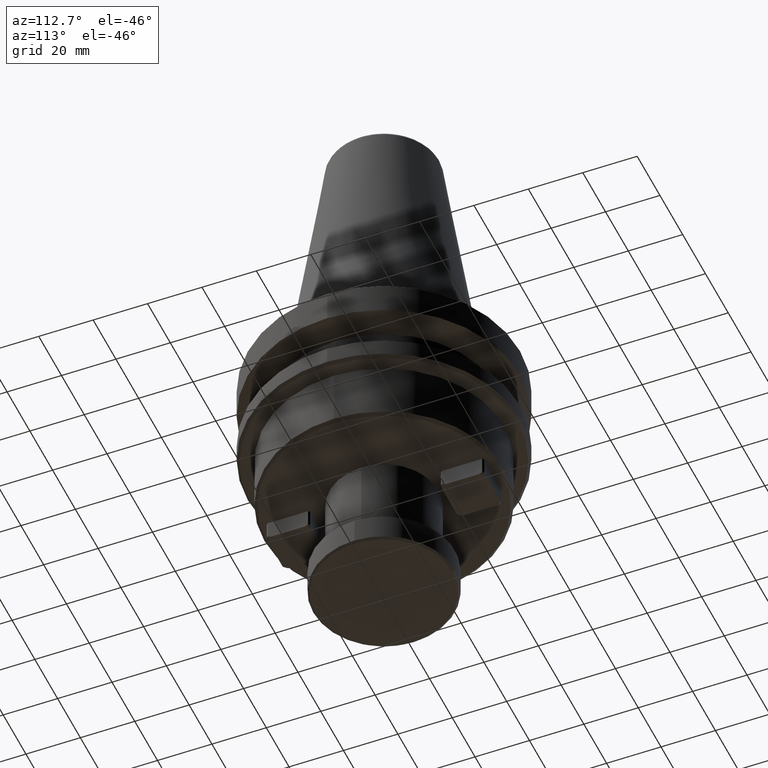
[diagram: clean part render]
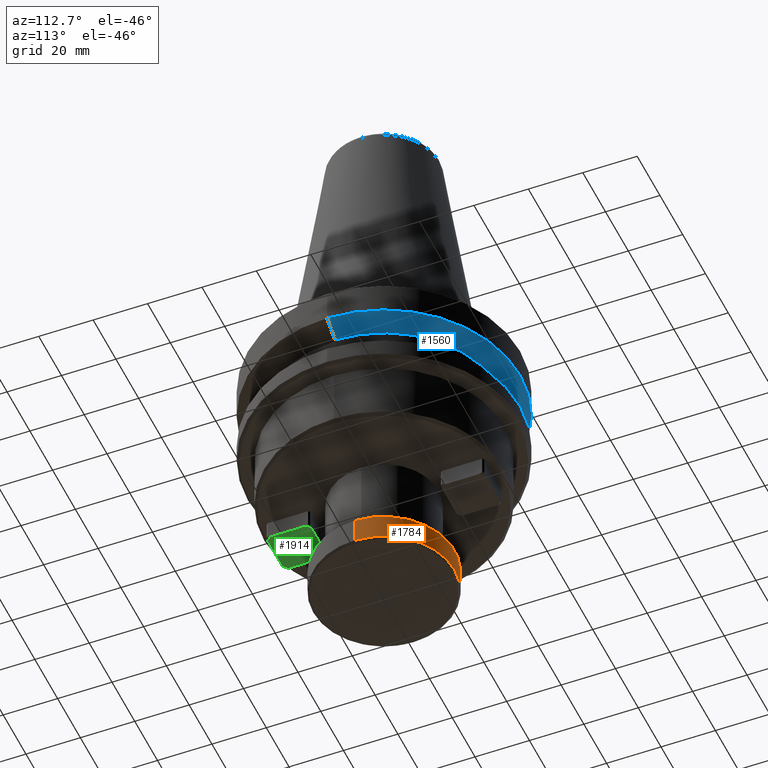
[diagram: same view with three faces highlighted in distinct colors, each labeled with its STEP entity id]
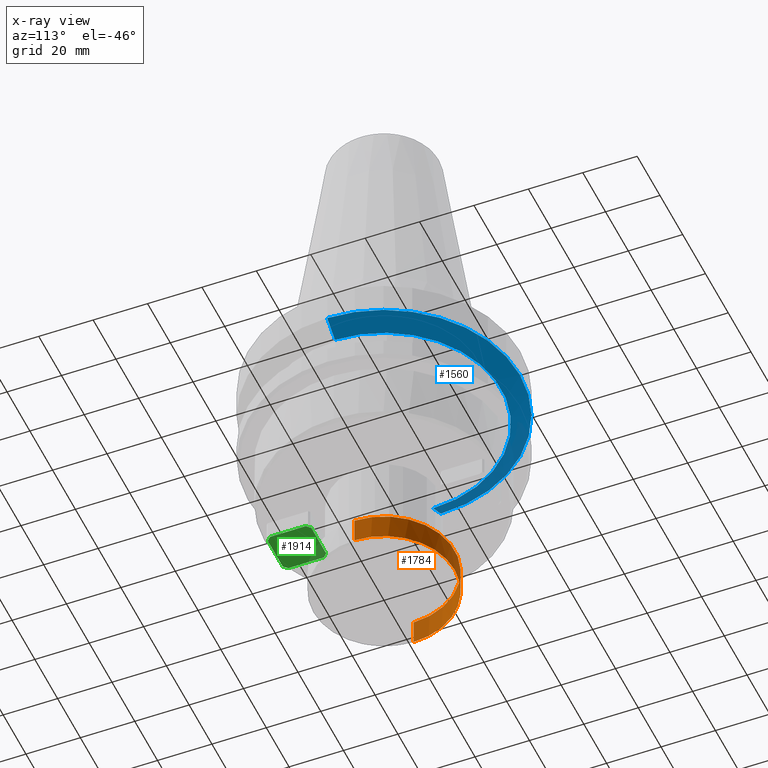
[diagram: x-ray of the same camera — body ghosted, the three highlighted faces saturated]
A machine part, auxiliary view with three faces highlighted in distinct colors.
The next image is the same camera in x-ray (body ghosted, the three faces saturated) — at least one of them is partly hidden behind the body in this view.
Their STEP definitions:

[orange] entity #1784 — the highlighted cylindrical surface (partial cylindrical patch) has radius 26 mm, axis along (0, 0, 1).
#180 = DIRECTION ( 'NONE',  ( 0.0000000000000000000, 0.0000000000000000000, 1.000000000000000000 ) ) ;
#185 = CARTESIAN_POINT ( 'NONE',  ( -26.00000000000000400, 3.184081677783118600E-015, 0.0000000000000000000 ) ) ;
#200 = AXIS2_PLACEMENT_3D ( 'NONE', #430, #384, #295 ) ;
#203 = VECTOR ( 'NONE', #1358, 1000.000000000000000 ) ;
#208 = VERTEX_POINT ( 'NONE', #1692 ) ;
#292 = EDGE_CURVE ( 'NONE', #2145, #208, #477, .T. ) ;
#295 = DIRECTION ( 'NONE',  ( 1.000000000000000000, 0.0000000000000000000, 0.0000000000000000000 ) ) ;
#325 = AXIS2_PLACEMENT_3D ( 'NONE', #1001, #1000, #999 ) ;
#384 = DIRECTION ( 'NONE',  ( 0.0000000000000000000, 0.0000000000000000000, 1.000000000000000000 ) ) ;
#430 = CARTESIAN_POINT ( 'NONE',  ( 0.0000000000000000000, 0.0000000000000000000, -101.2999999999999800 ) ) ;
#477 = CIRCLE ( 'NONE', #325, 26.00000000000000400 ) ;
#539 = CARTESIAN_POINT ( 'NONE',  ( 26.00000000000000400, 0.0000000000000000000, -101.2999999999999800 ) ) ;
#803 = VECTOR ( 'NONE', #180, 1000.000000000000000 ) ;
#888 = ORIENTED_EDGE ( 'NONE', *, *, #2597, .T. ) ;
#928 = ORIENTED_EDGE ( 'NONE', *, *, #2322, .F. ) ;
#951 = ORIENTED_EDGE ( 'NONE', *, *, #1843, .F. ) ;
#954 = ORIENTED_EDGE ( 'NONE', *, *, #1166, .T. ) ;
#999 = DIRECTION ( 'NONE',  ( 1.000000000000000000, 0.0000000000000000000, 0.0000000000000000000 ) ) ;
#1000 = DIRECTION ( 'NONE',  ( 0.0000000000000000000, 0.0000000000000000000, 1.000000000000000000 ) ) ;
#1001 = CARTESIAN_POINT ( 'NONE',  ( 0.0000000000000000000, 0.0000000000000000000, -101.2999999999999800 ) ) ;
#1004 = ORIENTED_EDGE ( 'NONE', *, *, #292, .T. ) ;
#1059 = CARTESIAN_POINT ( 'NONE',  ( 26.00000000000000400, 0.0000000000000000000, -91.70000000000000300 ) ) ;
#1082 = CARTESIAN_POINT ( 'NONE',  ( -26.00000000000000400, 3.184081677783118600E-015, -91.70000000000000300 ) ) ;
#1166 = EDGE_CURVE ( 'NONE', #208, #2550, #2664, .T. ) ;
#1268 = AXIS2_PLACEMENT_3D ( 'NONE', #2193, #1828, #1824 ) ;
#1311 = CYLINDRICAL_SURFACE ( 'NONE', #2721, 26.00000000000000400 ) ;
#1347 = CARTESIAN_POINT ( 'NONE',  ( 26.00000000000000400, 0.0000000000000000000, 0.0000000000000000000 ) ) ;
#1358 = DIRECTION ( 'NONE',  ( 0.0000000000000000000, 0.0000000000000000000, 1.000000000000000000 ) ) ;
#1440 = CIRCLE ( 'NONE', #200, 26.00000000000000400 ) ;
#1623 = CARTESIAN_POINT ( 'NONE',  ( 3.184081677783118200E-015, 26.00000000000000000, -101.2999999999999800 ) ) ;
#1692 = CARTESIAN_POINT ( 'NONE',  ( -26.00000000000000400, 3.184081677783118600E-015, -101.2999999999999800 ) ) ;
#1784 = ADVANCED_FACE ( 'NONE', ( #2086 ), #1311, .T. ) ;
#1824 = DIRECTION ( 'NONE',  ( -1.000000000000000000, 0.0000000000000000000, 0.0000000000000000000 ) ) ;
#1828 = DIRECTION ( 'NONE',  ( -0.0000000000000000000, -0.0000000000000000000, 1.000000000000000000 ) ) ;
#1839 = CIRCLE ( 'NONE', #1268, 26.00000000000000400 ) ;
#1843 = EDGE_CURVE ( 'NONE', #2579, #2550, #1839, .T. ) ;
#2086 = FACE_OUTER_BOUND ( 'NONE', #2708, .T. ) ;
#2145 = VERTEX_POINT ( 'NONE', #1623 ) ;
#2193 = CARTESIAN_POINT ( 'NONE',  ( 0.0000000000000000000, 0.0000000000000000000, -91.70000000000000300 ) ) ;
#2322 = EDGE_CURVE ( 'NONE', #2603, #2579, #2509, .T. ) ;
#2359 = CARTESIAN_POINT ( 'NONE',  ( 0.0000000000000000000, 0.0000000000000000000, 0.0000000000000000000 ) ) ;
#2377 = DIRECTION ( 'NONE',  ( 0.0000000000000000000, 0.0000000000000000000, 1.000000000000000000 ) ) ;
#2509 = LINE ( 'NONE', #1347, #203 ) ;
#2550 = VERTEX_POINT ( 'NONE', #1082 ) ;
#2579 = VERTEX_POINT ( 'NONE', #1059 ) ;
#2597 = EDGE_CURVE ( 'NONE', #2603, #2145, #1440, .T. ) ;
#2603 = VERTEX_POINT ( 'NONE', #539 ) ;
#2664 = LINE ( 'NONE', #185, #803 ) ;
#2677 = DIRECTION ( 'NONE',  ( 1.000000000000000000, 0.0000000000000000000, 0.0000000000000000000 ) ) ;
#2708 = EDGE_LOOP ( 'NONE', ( #1004, #954, #951, #928, #888 ) ) ;
#2721 = AXIS2_PLACEMENT_3D ( 'NONE', #2359, #2377, #2677 ) ;

[blue] entity #1560 — the highlighted conical surface has half-angle 60 deg.
#42 = ORIENTED_EDGE ( 'NONE', *, *, #1335, .F. ) ;
#45 = DIRECTION ( 'NONE',  ( 1.000000000000000000, 0.0000000000000000000, 0.0000000000000000000 ) ) ;
#47 = DIRECTION ( 'NONE',  ( 0.0000000000000000000, 0.0000000000000000000, 1.000000000000000000 ) ) ;
#51 = CARTESIAN_POINT ( 'NONE',  ( 0.0000000000000000000, 0.0000000000000000000, -15.70022000322675400 ) ) ;
#95 = VECTOR ( 'NONE', #300, 1000.000000000000000 ) ;
#300 = DIRECTION ( 'NONE',  ( -0.8660254037844388200, 1.060575238724907200E-016, 0.4999999999999997200 ) ) ;
#310 = LINE ( 'NONE', #1080, #2131 ) ;
#316 = CARTESIAN_POINT ( 'NONE',  ( -50.00000000000000700, 6.123233995736766900E-015, -15.70022000322675000 ) ) ;
#457 = AXIS2_PLACEMENT_3D ( 'NONE', #51, #47, #45 ) ;
#540 = CARTESIAN_POINT ( 'NONE',  ( 0.0000000000000000000, 0.0000000000000000000, -15.70022000322675000 ) ) ;
#649 = VERTEX_POINT ( 'NONE', #712 ) ;
#712 = CARTESIAN_POINT ( 'NONE',  ( -43.07217782649103600, 5.699027233244276000E-015, -19.70000000000001000 ) ) ;
#969 = CIRCLE ( 'NONE', #457, 50.00000000000000000 ) ;
#989 = EDGE_CURVE ( 'NONE', #649, #1902, #1287, .T. ) ;
#1044 = DIRECTION ( 'NONE',  ( 0.8660254037844388200, 0.0000000000000000000, 0.4999999999999997200 ) ) ;
#1080 = CARTESIAN_POINT ( 'NONE',  ( 50.00000000000000700, 0.0000000000000000000, -15.70022000322675000 ) ) ;
#1176 = EDGE_LOOP ( 'NONE', ( #1552, #1834, #42, #1755 ) ) ;
#1187 = AXIS2_PLACEMENT_3D ( 'NONE', #540, #2057, #2652 ) ;
#1203 = CARTESIAN_POINT ( 'NONE',  ( 43.07217782649103600, 0.0000000000000000000, -19.70000000000001000 ) ) ;
#1287 = LINE ( 'NONE', #316, #95 ) ;
#1295 = DIRECTION ( 'NONE',  ( 0.0000000000000000000, -0.0000000000000000000, 1.000000000000000000 ) ) ;
#1335 = EDGE_CURVE ( 'NONE', #1669, #1902, #969, .T. ) ;
#1552 = ORIENTED_EDGE ( 'NONE', *, *, #2669, .T. ) ;
#1560 = ADVANCED_FACE ( 'NONE', ( #2717 ), #2080, .T. ) ;
#1669 = VERTEX_POINT ( 'NONE', #2519 ) ;
#1705 = CARTESIAN_POINT ( 'NONE',  ( 0.0000000000000000000, 0.0000000000000000000, -19.70000000000001000 ) ) ;
#1755 = ORIENTED_EDGE ( 'NONE', *, *, #2560, .F. ) ;
#1834 = ORIENTED_EDGE ( 'NONE', *, *, #989, .T. ) ;
#1902 = VERTEX_POINT ( 'NONE', #1983 ) ;
#1983 = CARTESIAN_POINT ( 'NONE',  ( -50.00000000000000000, 6.123233995736766100E-015, -15.70022000322675400 ) ) ;
#2057 = DIRECTION ( 'NONE',  ( 0.0000000000000000000, -0.0000000000000000000, 1.000000000000000000 ) ) ;
#2080 = CONICAL_SURFACE ( 'NONE', #1187, 50.00000000000000700, 1.047197551196598100 ) ;
#2131 = VECTOR ( 'NONE', #1044, 1000.000000000000000 ) ;
#2304 = CIRCLE ( 'NONE', #2657, 43.07217782649103600 ) ;
#2382 = VERTEX_POINT ( 'NONE', #1203 ) ;
#2454 = DIRECTION ( 'NONE',  ( 1.000000000000000000, 0.0000000000000000000, 0.0000000000000000000 ) ) ;
#2519 = CARTESIAN_POINT ( 'NONE',  ( 50.00000000000000000, 0.0000000000000000000, -15.70022000322675400 ) ) ;
#2560 = EDGE_CURVE ( 'NONE', #2382, #1669, #310, .T. ) ;
#2652 = DIRECTION ( 'NONE',  ( 1.000000000000000000, 0.0000000000000000000, 0.0000000000000000000 ) ) ;
#2657 = AXIS2_PLACEMENT_3D ( 'NONE', #1705, #1295, #2454 ) ;
#2669 = EDGE_CURVE ( 'NONE', #2382, #649, #2304, .T. ) ;
#2717 = FACE_OUTER_BOUND ( 'NONE', #1176, .T. ) ;

[green] entity #1914 — the highlighted planar face has unit normal (0, 0, 1).
#69 = LINE ( 'NONE', #91, #2280 ) ;
#87 = DIRECTION ( 'NONE',  ( -1.000000000000000000, -0.0000000000000000000, 0.0000000000000000000 ) ) ;
#89 = VECTOR ( 'NONE', #730, 1000.000000000000000 ) ;
#91 = CARTESIAN_POINT ( 'NONE',  ( 7.999999999999996400, -23.99999999999999300, -66.99999999999998600 ) ) ;
#101 = VERTEX_POINT ( 'NONE', #1918 ) ;
#118 = DIRECTION ( 'NONE',  ( 0.7071067811865501300, 0.7071067811865450200, 0.0000000000000000000 ) ) ;
#160 = CARTESIAN_POINT ( 'NONE',  ( 6.551471862576107700, -39.99999999999999300, -66.99999999999998600 ) ) ;
#278 = DIRECTION ( 'NONE',  ( -0.7071067811865479100, -0.7071067811865470200, 0.0000000000000000000 ) ) ;
#293 = CARTESIAN_POINT ( 'NONE',  ( -6.551471862576206300, -23.99999999999999300, -66.99999999999998600 ) ) ;
#311 = ORIENTED_EDGE ( 'NONE', *, *, #606, .F. ) ;
#315 = VECTOR ( 'NONE', #367, 1000.000000000000000 ) ;
#318 = LINE ( 'NONE', #1467, #1456 ) ;
#338 = CARTESIAN_POINT ( 'NONE',  ( 7.999999999999991100, -38.55147186257612200, -66.99999999999998600 ) ) ;
#357 = AXIS2_PLACEMENT_3D ( 'NONE', #1968, #1926, #1877 ) ;
#367 = DIRECTION ( 'NONE',  ( -6.505213034913026600E-016, -1.000000000000000000, 0.0000000000000000000 ) ) ;
#369 = CARTESIAN_POINT ( 'NONE',  ( 7.999999999999996400, -25.44852813742382100, -66.99999999999998600 ) ) ;
#372 = CARTESIAN_POINT ( 'NONE',  ( -7.999999999999996400, -23.99999999999999300, -66.99999999999998600 ) ) ;
#486 = ORIENTED_EDGE ( 'NONE', *, *, #1300, .F. ) ;
#510 = FACE_OUTER_BOUND ( 'NONE', #516, .T. ) ;
#512 = VERTEX_POINT ( 'NONE', #840 ) ;
#516 = EDGE_LOOP ( 'NONE', ( #2580, #486, #311, #653, #2618, #1129, #2367, #1771 ) ) ;
#520 = LINE ( 'NONE', #738, #89 ) ;
#595 = VECTOR ( 'NONE', #2675, 1000.000000000000000 ) ;
#606 = EDGE_CURVE ( 'NONE', #822, #2482, #520, .T. ) ;
#653 = ORIENTED_EDGE ( 'NONE', *, *, #2666, .T. ) ;
#659 = LINE ( 'NONE', #1331, #2446 ) ;
#670 = VERTEX_POINT ( 'NONE', #717 ) ;
#717 = CARTESIAN_POINT ( 'NONE',  ( -7.999999999999996400, -25.44852813742378600, -66.99999999999998600 ) ) ;
#730 = DIRECTION ( 'NONE',  ( -0.7071067811865507900, 0.7071067811865441300, 0.0000000000000000000 ) ) ;
#738 = CARTESIAN_POINT ( 'NONE',  ( 7.999999999999996400, -25.44852813742382100, -66.99999999999998600 ) ) ;
#816 = EDGE_CURVE ( 'NONE', #670, #2155, #1540, .T. ) ;
#822 = VERTEX_POINT ( 'NONE', #369 ) ;
#840 = CARTESIAN_POINT ( 'NONE',  ( 6.551471862576101500, -39.99999999999999300, -67.00000000000000000 ) ) ;
#953 = VERTEX_POINT ( 'NONE', #338 ) ;
#998 = EDGE_CURVE ( 'NONE', #2076, #670, #1731, .T. ) ;
#1056 = VECTOR ( 'NONE', #278, 1000.000000000000100 ) ;
#1114 = CARTESIAN_POINT ( 'NONE',  ( 6.551471862576157400, -23.99999999999999300, -66.99999999999998600 ) ) ;
#1129 = ORIENTED_EDGE ( 'NONE', *, *, #2246, .T. ) ;
#1132 = CARTESIAN_POINT ( 'NONE',  ( 7.999999999999996400, -23.99999999999999300, -66.99999999999998600 ) ) ;
#1204 = LINE ( 'NONE', #1132, #595 ) ;
#1260 = EDGE_CURVE ( 'NONE', #512, #953, #2408, .T. ) ;
#1300 = EDGE_CURVE ( 'NONE', #2482, #2076, #69, .T. ) ;
#1316 = DIRECTION ( 'NONE',  ( 0.7071067811865491300, -0.7071067811865459100, 0.0000000000000000000 ) ) ;
#1331 = CARTESIAN_POINT ( 'NONE',  ( -8.000000000000007100, -38.55147186257613600, -66.99999999999998600 ) ) ;
#1456 = VECTOR ( 'NONE', #1463, 1000.000000000000000 ) ;
#1463 = DIRECTION ( 'NONE',  ( -1.000000000000000000, -0.0000000000000000000, 0.0000000000000000000 ) ) ;
#1467 = CARTESIAN_POINT ( 'NONE',  ( 7.999999999999992900, -39.99999999999999300, -67.00000000000000000 ) ) ;
#1540 = LINE ( 'NONE', #372, #315 ) ;
#1608 = CARTESIAN_POINT ( 'NONE',  ( -7.999999999999998200, -38.55147186257613600, -66.99999999999998600 ) ) ;
#1686 = CARTESIAN_POINT ( 'NONE',  ( -6.551471862576209800, -23.99999999999999600, -66.99999999999998600 ) ) ;
#1731 = LINE ( 'NONE', #293, #1056 ) ;
#1771 = ORIENTED_EDGE ( 'NONE', *, *, #816, .F. ) ;
#1773 = VECTOR ( 'NONE', #118, 1000.000000000000100 ) ;
#1877 = DIRECTION ( 'NONE',  ( 1.000000000000000000, 0.0000000000000000000, -0.0000000000000000000 ) ) ;
#1914 = ADVANCED_FACE ( 'NONE', ( #510 ), #1929, .F. ) ;
#1918 = CARTESIAN_POINT ( 'NONE',  ( -6.551471862576137000, -39.99999999999999300, -67.00000000000000000 ) ) ;
#1926 = DIRECTION ( 'NONE',  ( 0.0000000000000000000, 0.0000000000000000000, 1.000000000000000000 ) ) ;
#1929 = PLANE ( 'NONE',  #357 ) ;
#1968 = CARTESIAN_POINT ( 'NONE',  ( 0.0000000000000000000, 0.0000000000000000000, -66.99999999999998600 ) ) ;
#2076 = VERTEX_POINT ( 'NONE', #1686 ) ;
#2155 = VERTEX_POINT ( 'NONE', #1608 ) ;
#2246 = EDGE_CURVE ( 'NONE', #512, #101, #318, .T. ) ;
#2280 = VECTOR ( 'NONE', #87, 1000.000000000000000 ) ;
#2323 = EDGE_CURVE ( 'NONE', #2155, #101, #659, .T. ) ;
#2367 = ORIENTED_EDGE ( 'NONE', *, *, #2323, .F. ) ;
#2408 = LINE ( 'NONE', #160, #1773 ) ;
#2446 = VECTOR ( 'NONE', #1316, 1000.000000000000100 ) ;
#2482 = VERTEX_POINT ( 'NONE', #1114 ) ;
#2580 = ORIENTED_EDGE ( 'NONE', *, *, #998, .F. ) ;
#2618 = ORIENTED_EDGE ( 'NONE', *, *, #1260, .F. ) ;
#2666 = EDGE_CURVE ( 'NONE', #822, #953, #1204, .T. ) ;
#2675 = DIRECTION ( 'NONE',  ( -2.168404344971008900E-016, -1.000000000000000000, 0.0000000000000000000 ) ) ;